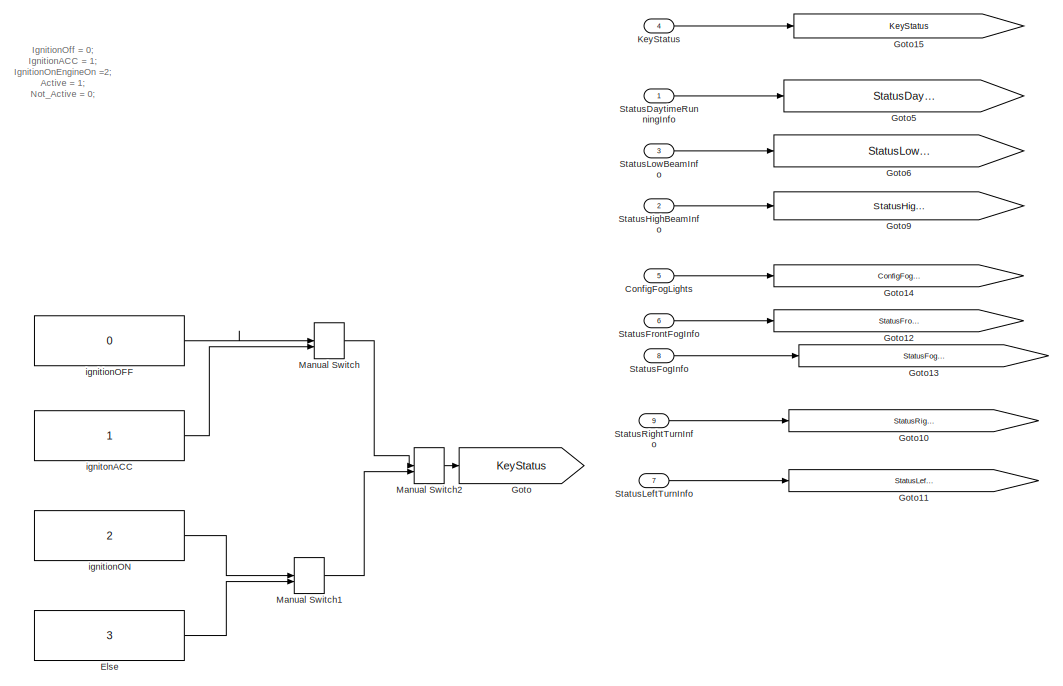
[diagram: root canvas - part 1/5, top center region]
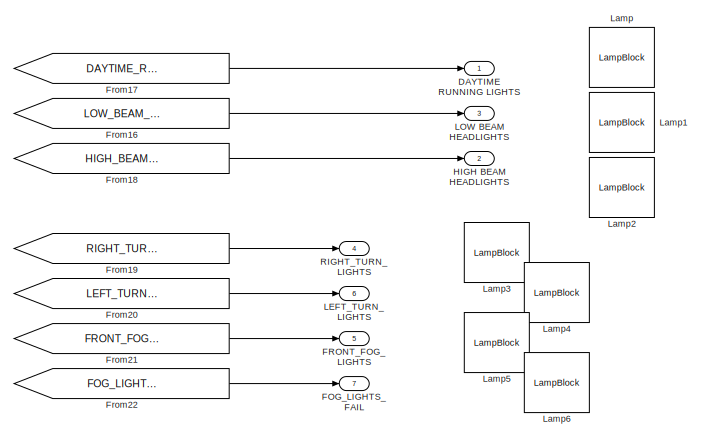
[diagram: root canvas - part 2/5, top center region]
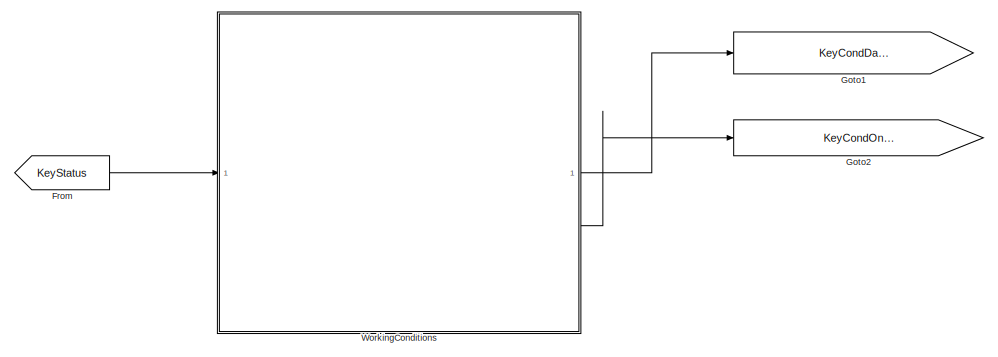
[diagram: root canvas - part 3/5, central region]
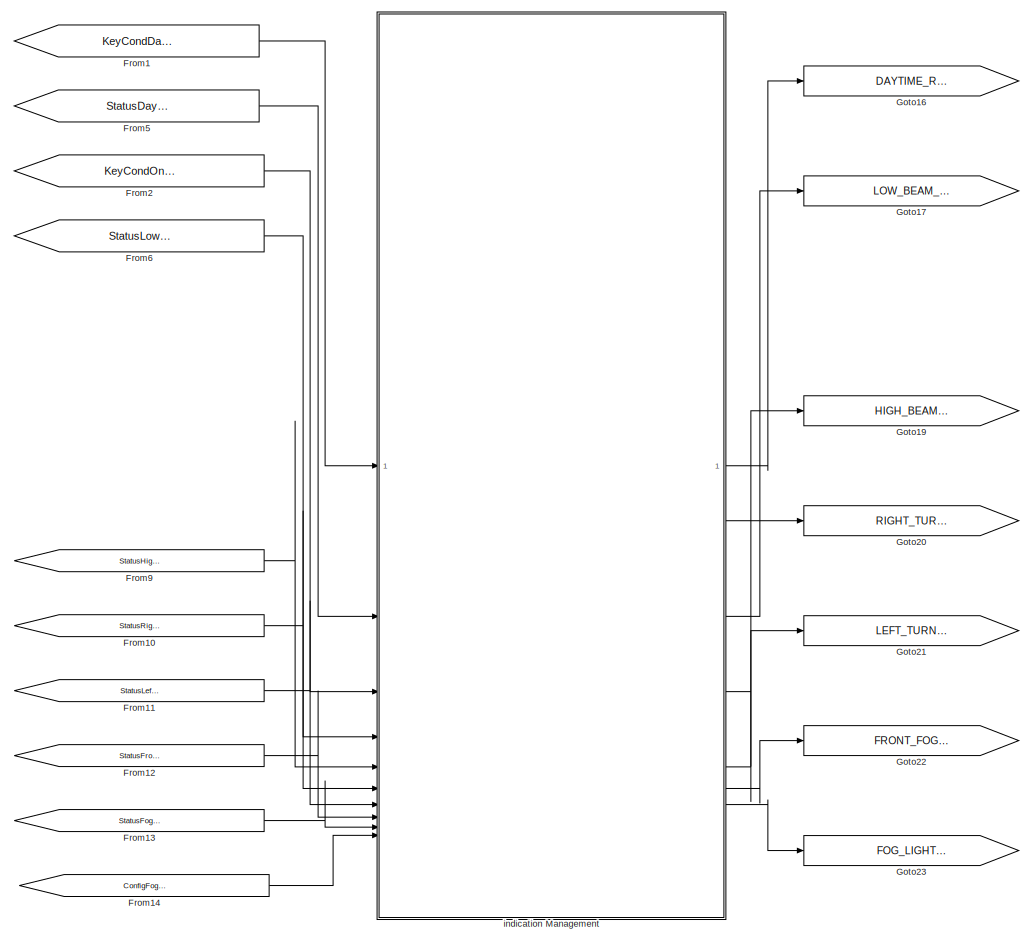
[diagram: root canvas - part 4/5, bottom right region]
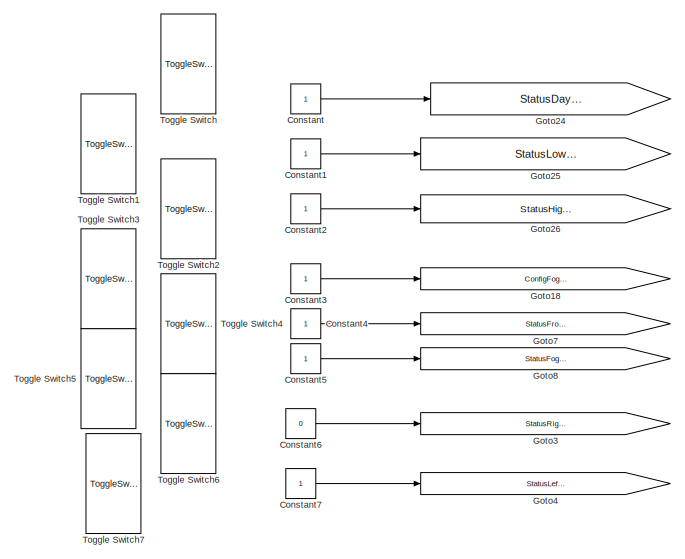
[diagram: root canvas - part 5/5, middle left region]
MODEL slx_462d05e0ffed
KIND model
CONFIG AbsTol = auto
CONFIG EnableMultiTasking = off
CONFIG FixedStep = 0.01
CONFIG MaxStep = auto
CONFIG MinStep = auto
CONFIG RelTol = 1e-3
CONFIG SampleTimeConstraint = Unconstrained
CONFIG SolverName = FixedStepDiscrete
CONFIG StartTime = 0.0
CONFIG StopTime = inf
WORKSPACE source: MATLAB code (in-file)
WORKSPACE IgnitionOff = 0
WORKSPACE IgnitionACC = 1
WORKSPACE IgnitionOnEngineOn = 2
WORKSPACE Active = 1
WORKSPACE Not_Active = 0
WORKSPACE Present = 1
WORKSPACE Absent = 0
BLOCK [Inport] ConfigFogLights
  Port = 5
BLOCK [Constant] Constant
BLOCK [Constant] Constant1
BLOCK [Constant] Constant2
BLOCK [Constant] Constant3
BLOCK [Constant] Constant4
BLOCK [Constant] Constant5
BLOCK [Constant] Constant6
  Value = 0
BLOCK [Constant] Constant7
BLOCK [Outport] DAYTIME RUNNING LIGHTS
BLOCK [Constant] Else
  SampleTime = -1
  Value = 3
BLOCK [Outport] FOG_LIGHTS_FAIL
  Port = 7
BLOCK [Outport] FRONT_FOG_LIGHTS
  Port = 5
BLOCK [From] From
  GotoTag = KeyStatus
BLOCK [From] From1
  GotoTag = KeyCondDayTimeLights
BLOCK [From] From10
  GotoTag = StatusRightTurnInfo
BLOCK [From] From11
  GotoTag = StatusLeftTurnInfo
BLOCK [From] From12
  GotoTag = StatusFrontFogInfo
BLOCK [From] From13
  GotoTag = StatusFogInfo
BLOCK [From] From14
  GotoTag = ConfigFogLights
BLOCK [From] From16
  GotoTag = LOW_BEAM_HEADLIGHTS
BLOCK [From] From17
  GotoTag = DAYTIME_RUNNING_LIGHTS
BLOCK [From] From18
  GotoTag = HIGH_BEAM_HEADLIGHTS
BLOCK [From] From19
  GotoTag = RIGHT_TURN_LIGHTS
BLOCK [From] From2
  GotoTag = KeyCondOnOrACC
BLOCK [From] From20
  GotoTag = LEFT_TURN_LIGHTS
BLOCK [From] From21
  GotoTag = FRONT_FOG_LIGHTS
BLOCK [From] From22
  GotoTag = FOG_LIGHTS_FAIL
BLOCK [From] From5
  GotoTag = StatusDaytimeRunningInfos
BLOCK [From] From6
  GotoTag = StatusLowBeamInfo
BLOCK [From] From9
  GotoTag = StatusHighBeamInfo
BLOCK [Goto] Goto
  GotoTag = KeyStatus
BLOCK [Goto] Goto1
  GotoTag = KeyCondDayTimeLights
BLOCK [Goto] Goto10
  Commented = on
  GotoTag = StatusRightTurnInfo
BLOCK [Goto] Goto11
  Commented = on
  GotoTag = StatusLeftTurnInfo
BLOCK [Goto] Goto12
  Commented = on
  GotoTag = StatusFrontFogInfo
BLOCK [Goto] Goto13
  Commented = on
  GotoTag = StatusFogInfo
BLOCK [Goto] Goto14
  Commented = on
  GotoTag = ConfigFogLights
BLOCK [Goto] Goto15
  Commented = on
  GotoTag = KeyStatus
BLOCK [Goto] Goto16
  GotoTag = DAYTIME_RUNNING_LIGHTS
BLOCK [Goto] Goto17
  GotoTag = LOW_BEAM_HEADLIGHTS
BLOCK [Goto] Goto18
  GotoTag = ConfigFogLights
BLOCK [Goto] Goto19
  GotoTag = HIGH_BEAM_HEADLIGHTS
BLOCK [Goto] Goto2
  GotoTag = KeyCondOnOrACC
BLOCK [Goto] Goto20
  GotoTag = RIGHT_TURN_LIGHTS
BLOCK [Goto] Goto21
  GotoTag = LEFT_TURN_LIGHTS
BLOCK [Goto] Goto22
  GotoTag = FRONT_FOG_LIGHTS
BLOCK [Goto] Goto23
  GotoTag = FOG_LIGHTS_FAIL
BLOCK [Goto] Goto24
  GotoTag = StatusDaytimeRunningInfos
BLOCK [Goto] Goto25
  GotoTag = StatusLowBeamInfo
BLOCK [Goto] Goto26
  GotoTag = StatusHighBeamInfo
BLOCK [Goto] Goto3
  GotoTag = StatusRightTurnInfo
BLOCK [Goto] Goto4
  GotoTag = StatusLeftTurnInfo
BLOCK [Goto] Goto5
  Commented = on
  GotoTag = StatusDaytimeRunningInfos
BLOCK [Goto] Goto6
  Commented = on
  GotoTag = StatusLowBeamInfo
BLOCK [Goto] Goto7
  GotoTag = StatusFrontFogInfo
BLOCK [Goto] Goto8
  GotoTag = StatusFogInfo
BLOCK [Goto] Goto9
  Commented = on
  GotoTag = StatusHighBeamInfo
BLOCK [Outport] HIGH BEAM HEADLIGHTS
  Port = 2
BLOCK [Inport] KeyStatus
  Port = 4
BLOCK [Outport] LEFT_TURN_LIGHTS
  Port = 6
BLOCK [Outport] LOW BEAM HEADLIGHTS
  Port = 3
BLOCK [LampBlock] Lamp
  LabelPosition = Hide
BLOCK [LampBlock] Lamp1
  LabelPosition = Hide
BLOCK [LampBlock] Lamp2
  LabelPosition = Hide
BLOCK [LampBlock] Lamp3
  LabelPosition = Hide
BLOCK [LampBlock] Lamp4
  LabelPosition = Hide
BLOCK [LampBlock] Lamp5
  LabelPosition = Hide
BLOCK [LampBlock] Lamp6
  LabelPosition = Hide
BLOCK [ManualSwitch] Manual Switch
BLOCK [ManualSwitch] Manual Switch1
BLOCK [ManualSwitch] Manual Switch2
  CurrentSetting = 0
BLOCK [Outport] RIGHT_TURN_LIGHTS
  Port = 4
BLOCK [Inport] StatusDaytimeRunningInfo
BLOCK [Inport] StatusFogInfo
  Port = 8
BLOCK [Inport] StatusFrontFogInfo
  Port = 6
BLOCK [Inport] StatusHighBeamInfo
  Port = 2
BLOCK [Inport] StatusLeftTurnInfo
  Port = 7
BLOCK [Inport] StatusLowBeamInfo
  Port = 3
BLOCK [Inport] StatusRightTurnInfo
  Port = 9
BLOCK [ToggleSwitchBlock] Toggle Switch
BLOCK [ToggleSwitchBlock] Toggle Switch1
BLOCK [ToggleSwitchBlock] Toggle Switch2
BLOCK [ToggleSwitchBlock] Toggle Switch3
BLOCK [ToggleSwitchBlock] Toggle Switch4
BLOCK [ToggleSwitchBlock] Toggle Switch5
BLOCK [ToggleSwitchBlock] Toggle Switch6
BLOCK [ToggleSwitchBlock] Toggle Switch7
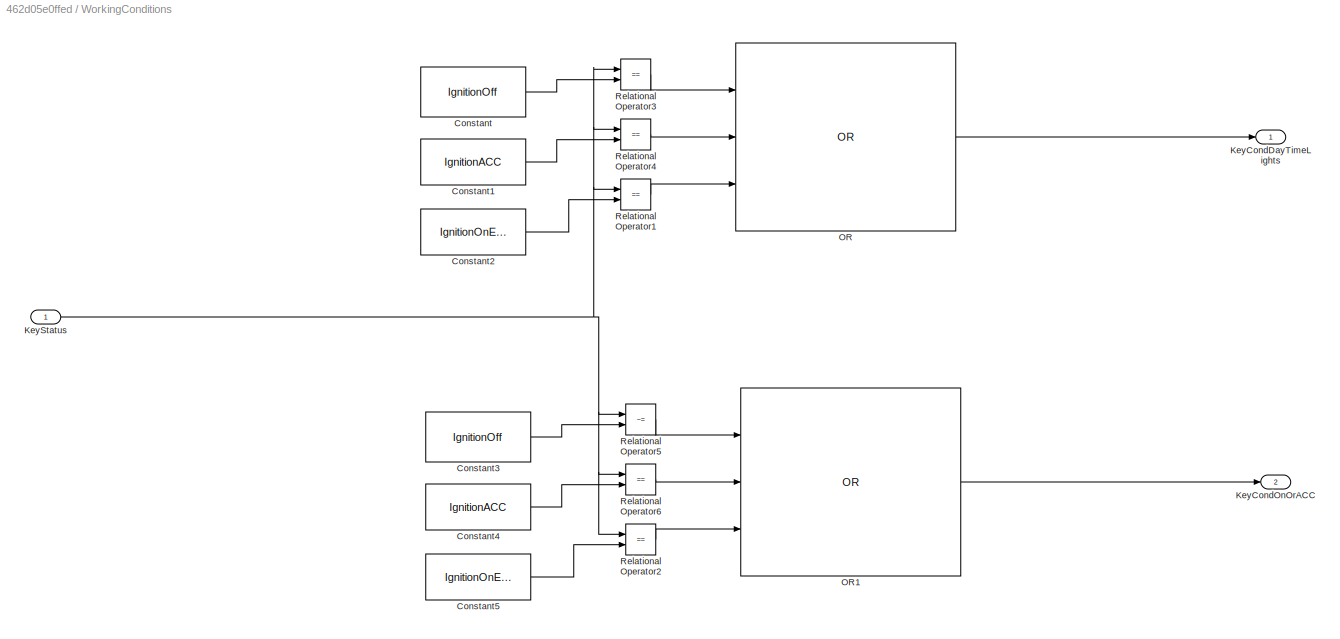
BLOCK [SubSystem] WorkingConditions
BLOCK [Constant] WorkingConditions/Constant
  SampleTime = -1
  Value = IgnitionOff
BLOCK [Constant] WorkingConditions/Constant1
  SampleTime = -1
  Value = IgnitionACC
BLOCK [Constant] WorkingConditions/Constant2
  SampleTime = -1
  Value = IgnitionOnEngineOn
BLOCK [Constant] WorkingConditions/Constant3
  SampleTime = -1
  Value = IgnitionOff
BLOCK [Constant] WorkingConditions/Constant4
  SampleTime = -1
  Value = IgnitionACC
BLOCK [Constant] WorkingConditions/Constant5
  SampleTime = -1
  Value = IgnitionOnEngineOn
BLOCK [Outport] WorkingConditions/KeyCondDayTimeLights
BLOCK [Outport] WorkingConditions/KeyCondOnOrACC
  Port = 2
BLOCK [Inport] WorkingConditions/KeyStatus
BLOCK [Logic] WorkingConditions/OR
  AllPortsSameDT = off
  IconShape = distinctive
  Inputs = 3
  Operator = OR
  OutDataTypeStr = boolean
BLOCK [Logic] WorkingConditions/OR1
  AllPortsSameDT = off
  IconShape = distinctive
  Inputs = 3
  Operator = OR
  OutDataTypeStr = boolean
BLOCK [RelationalOperator] WorkingConditions/Relational Operator1
  InputSameDT = off
  Operator = ==
  OutDataTypeStr = boolean
  RndMeth = Simplest
BLOCK [RelationalOperator] WorkingConditions/Relational Operator2
  InputSameDT = off
  Operator = ==
  OutDataTypeStr = boolean
  RndMeth = Simplest
BLOCK [RelationalOperator] WorkingConditions/Relational Operator3
  InputSameDT = off
  Operator = ==
  OutDataTypeStr = boolean
  RndMeth = Simplest
BLOCK [RelationalOperator] WorkingConditions/Relational Operator4
  InputSameDT = off
  Operator = ==
  OutDataTypeStr = boolean
  RndMeth = Simplest
BLOCK [RelationalOperator] WorkingConditions/Relational Operator5
  InputSameDT = off
  Operator = ~=
  OutDataTypeStr = boolean
  RndMeth = Simplest
BLOCK [RelationalOperator] WorkingConditions/Relational Operator6
  InputSameDT = off
  Operator = ==
  OutDataTypeStr = boolean
  RndMeth = Simplest
BLOCK [Constant] ignitionOFF
  SampleTime = -1
  Value = 0
BLOCK [Constant] ignitionON
  SampleTime = -1
  Value = 2
BLOCK [Constant] ignitonACC
  SampleTime = -1
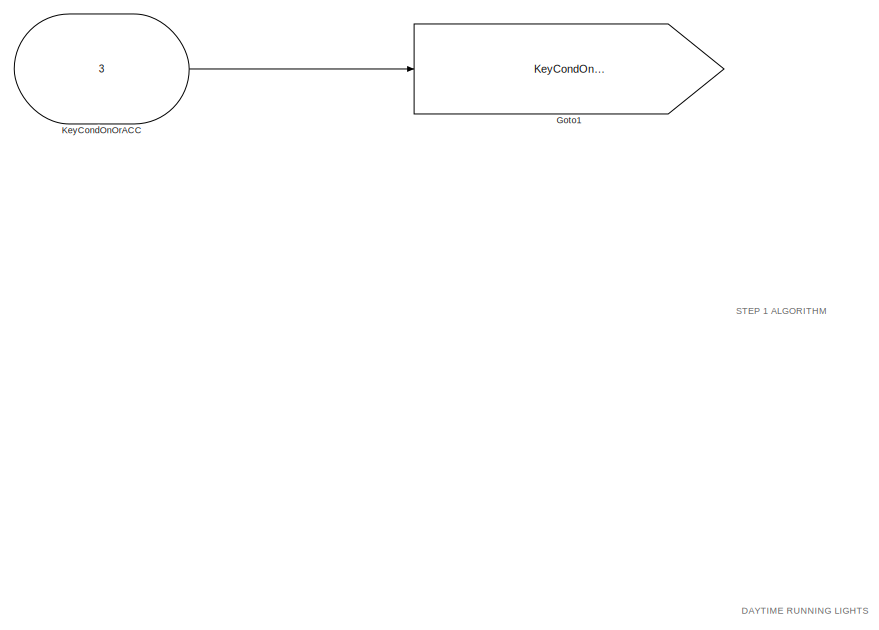
[diagram: indication Management - part 1/5, top left region]
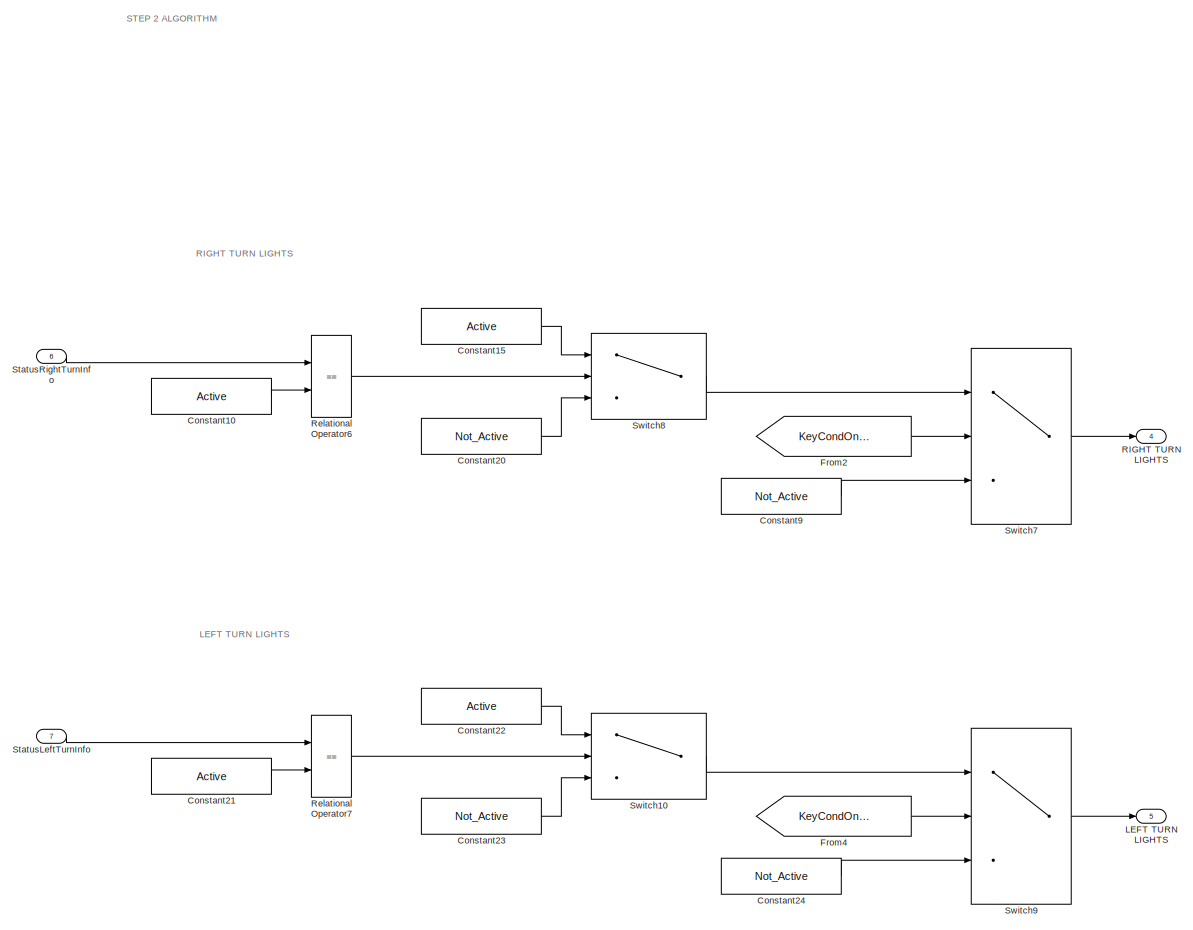
[diagram: indication Management - part 2/5, middle right region]
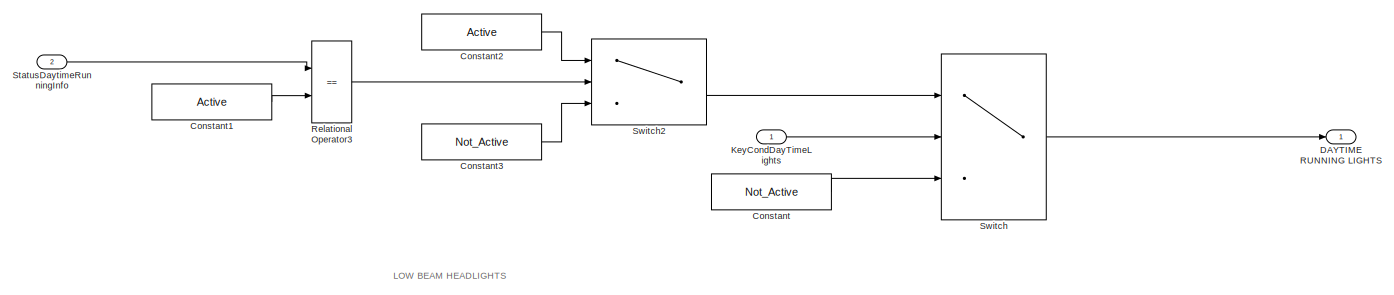
[diagram: indication Management - part 3/5, middle left region]
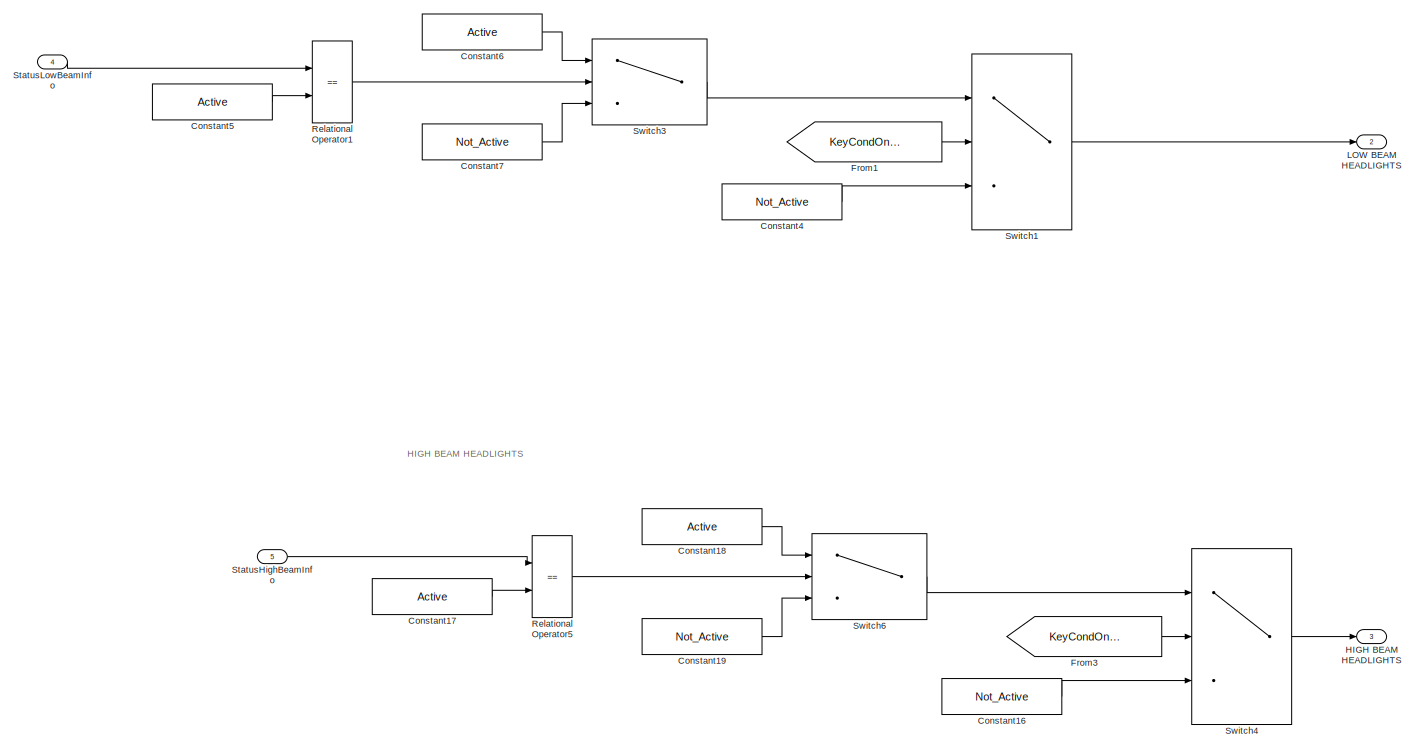
[diagram: indication Management - part 4/5, bottom left region]
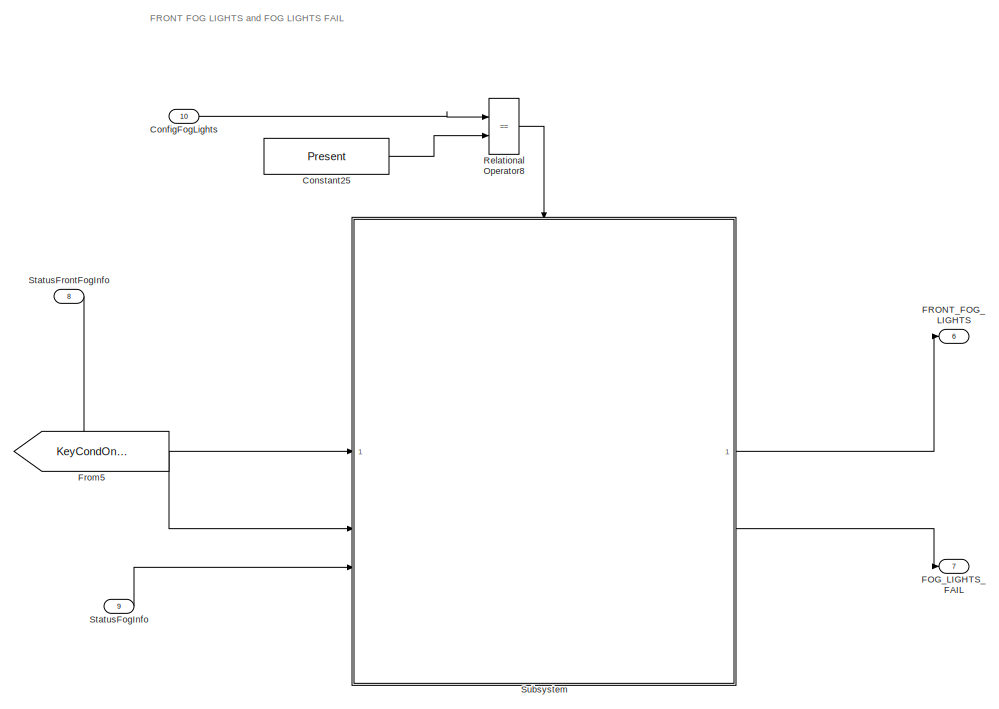
[diagram: indication Management - part 5/5, bottom right region]
BLOCK [SubSystem] indication Management
BLOCK [Inport] indication Management/ConfigFogLights
  Port = 10
BLOCK [Constant] indication Management/Constant
  SampleTime = -1
  Value = Not_Active
BLOCK [Constant] indication Management/Constant1
  SampleTime = -1
  Value = Active
BLOCK [Constant] indication Management/Constant10
  SampleTime = -1
  Value = Active
BLOCK [Constant] indication Management/Constant15
  SampleTime = -1
  Value = Active
BLOCK [Constant] indication Management/Constant16
  SampleTime = -1
  Value = Not_Active
BLOCK [Constant] indication Management/Constant17
  SampleTime = -1
  Value = Active
BLOCK [Constant] indication Management/Constant18
  SampleTime = -1
  Value = Active
BLOCK [Constant] indication Management/Constant19
  SampleTime = -1
  Value = Not_Active
BLOCK [Constant] indication Management/Constant2
  SampleTime = -1
  Value = Active
BLOCK [Constant] indication Management/Constant20
  SampleTime = -1
  Value = Not_Active
BLOCK [Constant] indication Management/Constant21
  SampleTime = -1
  Value = Active
BLOCK [Constant] indication Management/Constant22
  SampleTime = -1
  Value = Active
BLOCK [Constant] indication Management/Constant23
  SampleTime = -1
  Value = Not_Active
BLOCK [Constant] indication Management/Constant24
  SampleTime = -1
  Value = Not_Active
BLOCK [Constant] indication Management/Constant25
  SampleTime = -1
  Value = Present
BLOCK [Constant] indication Management/Constant3
  SampleTime = -1
  Value = Not_Active
BLOCK [Constant] indication Management/Constant4
  SampleTime = -1
  Value = Not_Active
BLOCK [Constant] indication Management/Constant5
  SampleTime = -1
  Value = Active
BLOCK [Constant] indication Management/Constant6
  SampleTime = -1
  Value = Active
BLOCK [Constant] indication Management/Constant7
  SampleTime = -1
  Value = Not_Active
BLOCK [Constant] indication Management/Constant9
  SampleTime = -1
  Value = Not_Active
BLOCK [Outport] indication Management/DAYTIME RUNNING LIGHTS
BLOCK [Outport] indication Management/FOG_LIGHTS_FAIL
  Port = 7
BLOCK [Outport] indication Management/FRONT_FOG_LIGHTS
  Port = 6
BLOCK [From] indication Management/From1
  GotoTag = KeyCondOnOrACC
BLOCK [From] indication Management/From2
  GotoTag = KeyCondOnOrACC
BLOCK [From] indication Management/From3
  GotoTag = KeyCondOnOrACC
BLOCK [From] indication Management/From4
  GotoTag = KeyCondOnOrACC
BLOCK [From] indication Management/From5
  GotoTag = KeyCondOnOrACC
BLOCK [Goto] indication Management/Goto1
  GotoTag = KeyCondOnOrACC
BLOCK [Outport] indication Management/HIGH BEAM HEADLIGHTS
  Port = 3
BLOCK [Inport] indication Management/KeyCondDayTimeLights
BLOCK [Inport] indication Management/KeyCondOnOrACC
  Port = 3
BLOCK [Outport] indication Management/LEFT TURN LIGHTS
  Port = 5
BLOCK [Outport] indication Management/LOW BEAM HEADLIGHTS
  Port = 2
BLOCK [Outport] indication Management/RIGHT TURN LIGHTS
  Port = 4
BLOCK [RelationalOperator] indication Management/Relational Operator1
  InputSameDT = off
  Operator = ==
  OutDataTypeStr = boolean
  RndMeth = Simplest
BLOCK [RelationalOperator] indication Management/Relational Operator3
  InputSameDT = off
  Operator = ==
  OutDataTypeStr = boolean
  RndMeth = Simplest
BLOCK [RelationalOperator] indication Management/Relational Operator5
  InputSameDT = off
  Operator = ==
  OutDataTypeStr = boolean
  RndMeth = Simplest
BLOCK [RelationalOperator] indication Management/Relational Operator6
  InputSameDT = off
  Operator = ==
  OutDataTypeStr = boolean
  RndMeth = Simplest
BLOCK [RelationalOperator] indication Management/Relational Operator7
  InputSameDT = off
  Operator = ==
  OutDataTypeStr = boolean
  RndMeth = Simplest
BLOCK [RelationalOperator] indication Management/Relational Operator8
  InputSameDT = off
  Operator = ==
  OutDataTypeStr = boolean
  RndMeth = Simplest
BLOCK [Inport] indication Management/StatusDaytimeRunningInfo
  Port = 2
BLOCK [Inport] indication Management/StatusFogInfo
  Port = 9
BLOCK [Inport] indication Management/StatusFrontFogInfo
  Port = 8
BLOCK [Inport] indication Management/StatusHighBeamInfo
  Port = 5
BLOCK [Inport] indication Management/StatusLeftTurnInfo
  Port = 7
BLOCK [Inport] indication Management/StatusLowBeamInfo
  Port = 4
BLOCK [Inport] indication Management/StatusRightTurnInfo
  Port = 6
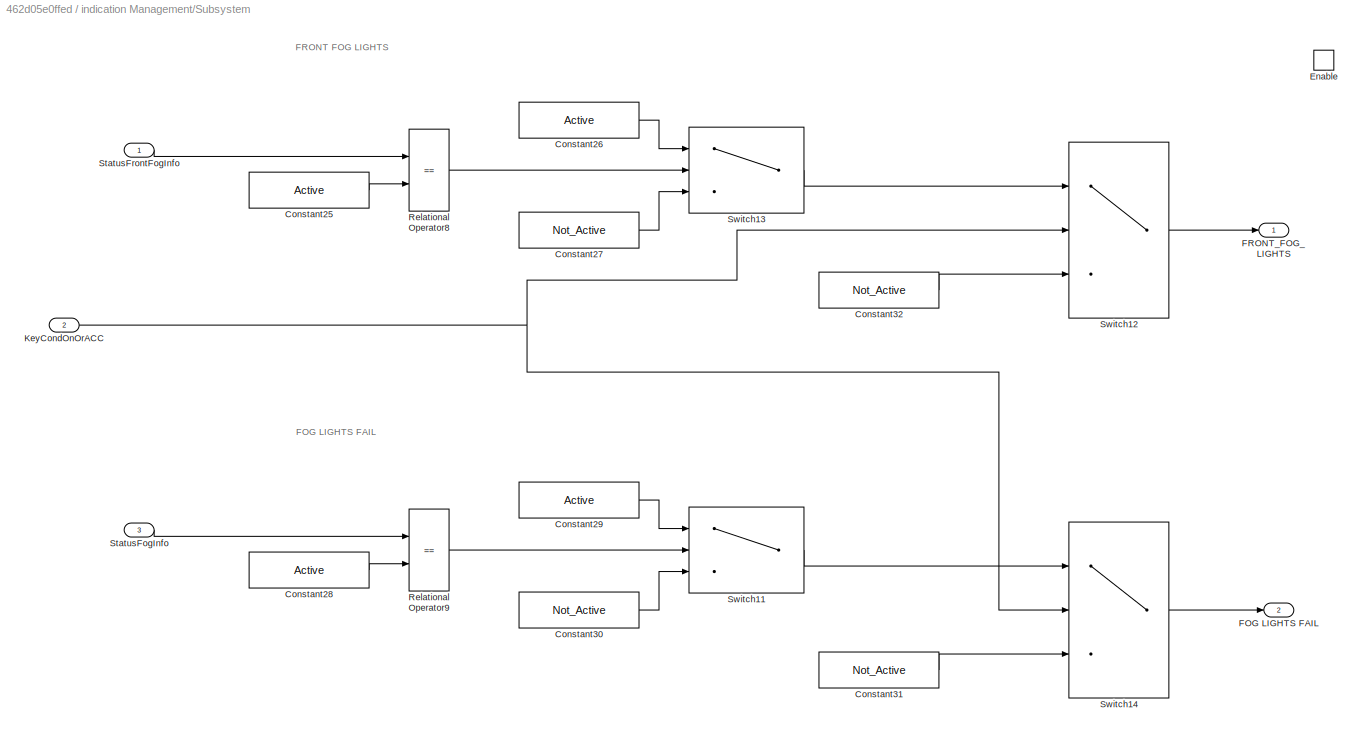
BLOCK [SubSystem] indication Management/Subsystem
BLOCK [Constant] indication Management/Subsystem/Constant25
  SampleTime = -1
  Value = Active
BLOCK [Constant] indication Management/Subsystem/Constant26
  SampleTime = -1
  Value = Active
BLOCK [Constant] indication Management/Subsystem/Constant27
  SampleTime = -1
  Value = Not_Active
BLOCK [Constant] indication Management/Subsystem/Constant28
  SampleTime = -1
  Value = Active
BLOCK [Constant] indication Management/Subsystem/Constant29
  SampleTime = -1
  Value = Active
BLOCK [Constant] indication Management/Subsystem/Constant30
  SampleTime = -1
  Value = Not_Active
BLOCK [Constant] indication Management/Subsystem/Constant31
  SampleTime = -1
  Value = Not_Active
BLOCK [Constant] indication Management/Subsystem/Constant32
  SampleTime = -1
  Value = Not_Active
BLOCK [EnablePort] indication Management/Subsystem/Enable
BLOCK [Outport] indication Management/Subsystem/FOG LIGHTS FAIL
  Port = 2
BLOCK [Outport] indication Management/Subsystem/FRONT_FOG_LIGHTS
BLOCK [Inport] indication Management/Subsystem/KeyCondOnOrACC
  Port = 2
BLOCK [RelationalOperator] indication Management/Subsystem/Relational Operator8
  InputSameDT = off
  Operator = ==
  OutDataTypeStr = boolean
  RndMeth = Simplest
BLOCK [RelationalOperator] indication Management/Subsystem/Relational Operator9
  InputSameDT = off
  Operator = ==
  OutDataTypeStr = boolean
  RndMeth = Simplest
BLOCK [Inport] indication Management/Subsystem/StatusFogInfo
  Port = 3
BLOCK [Inport] indication Management/Subsystem/StatusFrontFogInfo
BLOCK [Switch] indication Management/Subsystem/Switch11
  Criteria = u2 ~= 0
  InputSameDT = off
  SaturateOnIntegerOverflow = off
BLOCK [Switch] indication Management/Subsystem/Switch12
  Criteria = u2 ~= 0
  InputSameDT = off
  SaturateOnIntegerOverflow = off
BLOCK [Switch] indication Management/Subsystem/Switch13
  Criteria = u2 ~= 0
  InputSameDT = off
  SaturateOnIntegerOverflow = off
BLOCK [Switch] indication Management/Subsystem/Switch14
  Criteria = u2 ~= 0
  InputSameDT = off
  SaturateOnIntegerOverflow = off
BLOCK [Switch] indication Management/Switch
  Criteria = u2 ~= 0
  InputSameDT = off
  SaturateOnIntegerOverflow = off
BLOCK [Switch] indication Management/Switch1
  Criteria = u2 ~= 0
  InputSameDT = off
  SaturateOnIntegerOverflow = off
BLOCK [Switch] indication Management/Switch10
  Criteria = u2 ~= 0
  InputSameDT = off
  SaturateOnIntegerOverflow = off
BLOCK [Switch] indication Management/Switch2
  Criteria = u2 ~= 0
  InputSameDT = off
  SaturateOnIntegerOverflow = off
BLOCK [Switch] indication Management/Switch3
  Criteria = u2 ~= 0
  InputSameDT = off
  SaturateOnIntegerOverflow = off
BLOCK [Switch] indication Management/Switch4
  Criteria = u2 ~= 0
  InputSameDT = off
  SaturateOnIntegerOverflow = off
BLOCK [Switch] indication Management/Switch6
  Criteria = u2 ~= 0
  InputSameDT = off
  SaturateOnIntegerOverflow = off
BLOCK [Switch] indication Management/Switch7
  Criteria = u2 ~= 0
  InputSameDT = off
  SaturateOnIntegerOverflow = off
BLOCK [Switch] indication Management/Switch8
  Criteria = u2 ~= 0
  InputSameDT = off
  SaturateOnIntegerOverflow = off
BLOCK [Switch] indication Management/Switch9
  Criteria = u2 ~= 0
  InputSameDT = off
  SaturateOnIntegerOverflow = off
ANNOTATION (root): IgnitionOff = 0; IgnitionACC = 1; IgnitionOnEngineOn =2; Active = 1; Not_Active = 0;
ANNOTATION indication Management: DAYTIME RUNNING LIGHTS
ANNOTATION indication Management: FRONT FOG LIGHTS and FOG LIGHTS FAIL
ANNOTATION indication Management: HIGH BEAM HEADLIGHTS
ANNOTATION indication Management: LEFT TURN LIGHTS
ANNOTATION indication Management: LOW BEAM HEADLIGHTS
ANNOTATION indication Management: RIGHT TURN LIGHTS
ANNOTATION indication Management: STEP 1 ALGORITHM
ANNOTATION indication Management: STEP 2 ALGORITHM
ANNOTATION indication Management/Subsystem: FOG LIGHTS FAIL
ANNOTATION indication Management/Subsystem: FRONT FOG LIGHTS
LINE ConfigFogLights:1 -> Goto14:1
LINE Constant1:1 -> Goto25:1
LINE Constant2:1 -> Goto26:1
LINE Constant3:1 -> Goto18:1
LINE Constant4:1 -> Goto7:1
LINE Constant5:1 -> Goto8:1
LINE Constant6:1 -> Goto3:1
LINE Constant7:1 -> Goto4:1
LINE Constant:1 -> Goto24:1
LINE Else:1 -> Manual Switch1:2
LINE From10:1 -> indication Management:6
LINE From11:1 -> indication Management:7
LINE From12:1 -> indication Management:8
LINE From13:1 -> indication Management:9
LINE From14:1 -> indication Management:10
LINE From16:1 -> LOW BEAM HEADLIGHTS:1
LINE From17:1 -> DAYTIME RUNNING LIGHTS:1
LINE From18:1 -> HIGH BEAM HEADLIGHTS:1
LINE From19:1 -> RIGHT_TURN_LIGHTS:1
LINE From1:1 -> indication Management:1
LINE From20:1 -> LEFT_TURN_LIGHTS:1
LINE From21:1 -> FRONT_FOG_LIGHTS:1
LINE From22:1 -> FOG_LIGHTS_FAIL:1
LINE From2:1 -> indication Management:3
LINE From5:1 -> indication Management:2
LINE From6:1 -> indication Management:4
LINE From9:1 -> indication Management:5
LINE From:1 -> WorkingConditions:1
LINE KeyStatus:1 -> Goto15:1
LINE Manual Switch1:1 -> Manual Switch2:2
LINE Manual Switch2:1 -> Goto:1
LINE Manual Switch:1 -> Manual Switch2:1
LINE StatusDaytimeRunningInfo:1 -> Goto5:1
LINE StatusFogInfo:1 -> Goto13:1
LINE StatusFrontFogInfo:1 -> Goto12:1
LINE StatusHighBeamInfo:1 -> Goto9:1
LINE StatusLeftTurnInfo:1 -> Goto11:1
LINE StatusLowBeamInfo:1 -> Goto6:1
LINE StatusRightTurnInfo:1 -> Goto10:1
LINE WorkingConditions/Constant1:1 -> WorkingConditions/Relational Operator4:2
LINE WorkingConditions/Constant2:1 -> WorkingConditions/Relational Operator1:2
LINE WorkingConditions/Constant3:1 -> WorkingConditions/Relational Operator5:2
LINE WorkingConditions/Constant4:1 -> WorkingConditions/Relational Operator6:2
LINE WorkingConditions/Constant5:1 -> WorkingConditions/Relational Operator2:2
LINE WorkingConditions/Constant:1 -> WorkingConditions/Relational Operator3:2
NET WorkingConditions/KeyStatus:1 -> WorkingConditions/Relational Operator1:1, WorkingConditions/Relational Operator2:1, WorkingConditions/Relational Operator3:1, WorkingConditions/Relational Operator4:1, WorkingConditions/Relational Operator5:1, WorkingConditions/Relational Operator6:1
LINE WorkingConditions/OR1:1 -> WorkingConditions/KeyCondOnOrACC:1
LINE WorkingConditions/OR:1 -> WorkingConditions/KeyCondDayTimeLights:1
LINE WorkingConditions/Relational Operator1:1 -> WorkingConditions/OR:3
LINE WorkingConditions/Relational Operator2:1 -> WorkingConditions/OR1:3
LINE WorkingConditions/Relational Operator3:1 -> WorkingConditions/OR:1
LINE WorkingConditions/Relational Operator4:1 -> WorkingConditions/OR:2
LINE WorkingConditions/Relational Operator5:1 -> WorkingConditions/OR1:1
LINE WorkingConditions/Relational Operator6:1 -> WorkingConditions/OR1:2
LINE WorkingConditions:1 -> Goto1:1
LINE WorkingConditions:2 -> Goto2:1
LINE ignitionOFF:1 -> Manual Switch:1
LINE ignitionON:1 -> Manual Switch1:1
LINE ignitonACC:1 -> Manual Switch:2
LINE indication Management/ConfigFogLights:1 -> indication Management/Relational Operator8:1
LINE indication Management/Constant10:1 -> indication Management/Relational Operator6:2
LINE indication Management/Constant15:1 -> indication Management/Switch8:1
LINE indication Management/Constant16:1 -> indication Management/Switch4:3
LINE indication Management/Constant17:1 -> indication Management/Relational Operator5:2
LINE indication Management/Constant18:1 -> indication Management/Switch6:1
LINE indication Management/Constant19:1 -> indication Management/Switch6:3
LINE indication Management/Constant1:1 -> indication Management/Relational Operator3:2
LINE indication Management/Constant20:1 -> indication Management/Switch8:3
LINE indication Management/Constant21:1 -> indication Management/Relational Operator7:2
LINE indication Management/Constant22:1 -> indication Management/Switch10:1
LINE indication Management/Constant23:1 -> indication Management/Switch10:3
LINE indication Management/Constant24:1 -> indication Management/Switch9:3
LINE indication Management/Constant25:1 -> indication Management/Relational Operator8:2
LINE indication Management/Constant2:1 -> indication Management/Switch2:1
LINE indication Management/Constant3:1 -> indication Management/Switch2:3
LINE indication Management/Constant4:1 -> indication Management/Switch1:3
LINE indication Management/Constant5:1 -> indication Management/Relational Operator1:2
LINE indication Management/Constant6:1 -> indication Management/Switch3:1
LINE indication Management/Constant7:1 -> indication Management/Switch3:3
LINE indication Management/Constant9:1 -> indication Management/Switch7:3
LINE indication Management/Constant:1 -> indication Management/Switch:3
LINE indication Management/From1:1 -> indication Management/Switch1:2
LINE indication Management/From2:1 -> indication Management/Switch7:2
LINE indication Management/From3:1 -> indication Management/Switch4:2
LINE indication Management/From4:1 -> indication Management/Switch9:2
LINE indication Management/From5:1 -> indication Management/Subsystem:2
LINE indication Management/KeyCondDayTimeLights:1 -> indication Management/Switch:2
LINE indication Management/KeyCondOnOrACC:1 -> indication Management/Goto1:1
LINE indication Management/Relational Operator1:1 -> indication Management/Switch3:2
LINE indication Management/Relational Operator3:1 -> indication Management/Switch2:2
LINE indication Management/Relational Operator5:1 -> indication Management/Switch6:2
LINE indication Management/Relational Operator6:1 -> indication Management/Switch8:2
LINE indication Management/Relational Operator7:1 -> indication Management/Switch10:2
LINE indication Management/Relational Operator8:1 -> indication Management/Subsystem:enable
LINE indication Management/StatusDaytimeRunningInfo:1 -> indication Management/Relational Operator3:1
LINE indication Management/StatusFogInfo:1 -> indication Management/Subsystem:3
LINE indication Management/StatusFrontFogInfo:1 -> indication Management/Subsystem:1
LINE indication Management/StatusHighBeamInfo:1 -> indication Management/Relational Operator5:1
LINE indication Management/StatusLeftTurnInfo:1 -> indication Management/Relational Operator7:1
LINE indication Management/StatusLowBeamInfo:1 -> indication Management/Relational Operator1:1
LINE indication Management/StatusRightTurnInfo:1 -> indication Management/Relational Operator6:1
LINE indication Management/Subsystem/Constant25:1 -> indication Management/Subsystem/Relational Operator8:2
LINE indication Management/Subsystem/Constant26:1 -> indication Management/Subsystem/Switch13:1
LINE indication Management/Subsystem/Constant27:1 -> indication Management/Subsystem/Switch13:3
LINE indication Management/Subsystem/Constant28:1 -> indication Management/Subsystem/Relational Operator9:2
LINE indication Management/Subsystem/Constant29:1 -> indication Management/Subsystem/Switch11:1
LINE indication Management/Subsystem/Constant30:1 -> indication Management/Subsystem/Switch11:3
LINE indication Management/Subsystem/Constant31:1 -> indication Management/Subsystem/Switch14:3
LINE indication Management/Subsystem/Constant32:1 -> indication Management/Subsystem/Switch12:3
NET indication Management/Subsystem/KeyCondOnOrACC:1 -> indication Management/Subsystem/Switch12:2, indication Management/Subsystem/Switch14:2
LINE indication Management/Subsystem/Relational Operator8:1 -> indication Management/Subsystem/Switch13:2
LINE indication Management/Subsystem/Relational Operator9:1 -> indication Management/Subsystem/Switch11:2
LINE indication Management/Subsystem/StatusFogInfo:1 -> indication Management/Subsystem/Relational Operator9:1
LINE indication Management/Subsystem/StatusFrontFogInfo:1 -> indication Management/Subsystem/Relational Operator8:1
LINE indication Management/Subsystem/Switch11:1 -> indication Management/Subsystem/Switch14:1
LINE indication Management/Subsystem/Switch12:1 -> indication Management/Subsystem/FRONT_FOG_LIGHTS:1
LINE indication Management/Subsystem/Switch13:1 -> indication Management/Subsystem/Switch12:1
LINE indication Management/Subsystem/Switch14:1 -> indication Management/Subsystem/FOG LIGHTS FAIL:1
LINE indication Management/Subsystem:1 -> indication Management/FRONT_FOG_LIGHTS:1
LINE indication Management/Subsystem:2 -> indication Management/FOG_LIGHTS_FAIL:1
LINE indication Management/Switch10:1 -> indication Management/Switch9:1
LINE indication Management/Switch1:1 -> indication Management/LOW BEAM HEADLIGHTS:1
LINE indication Management/Switch2:1 -> indication Management/Switch:1
LINE indication Management/Switch3:1 -> indication Management/Switch1:1
LINE indication Management/Switch4:1 -> indication Management/HIGH BEAM HEADLIGHTS:1
LINE indication Management/Switch6:1 -> indication Management/Switch4:1
LINE indication Management/Switch7:1 -> indication Management/RIGHT TURN LIGHTS:1
LINE indication Management/Switch8:1 -> indication Management/Switch7:1
LINE indication Management/Switch9:1 -> indication Management/LEFT TURN LIGHTS:1
LINE indication Management/Switch:1 -> indication Management/DAYTIME RUNNING LIGHTS:1
LINE indication Management:1 -> Goto16:1
LINE indication Management:2 -> Goto17:1
LINE indication Management:3 -> Goto19:1
LINE indication Management:4 -> Goto20:1
LINE indication Management:5 -> Goto21:1
LINE indication Management:6 -> Goto22:1
LINE indication Management:7 -> Goto23:1
note: NET lines group one-source signal fan-out (src -> all destinations, sorted); 1:1 wires keep LINE
